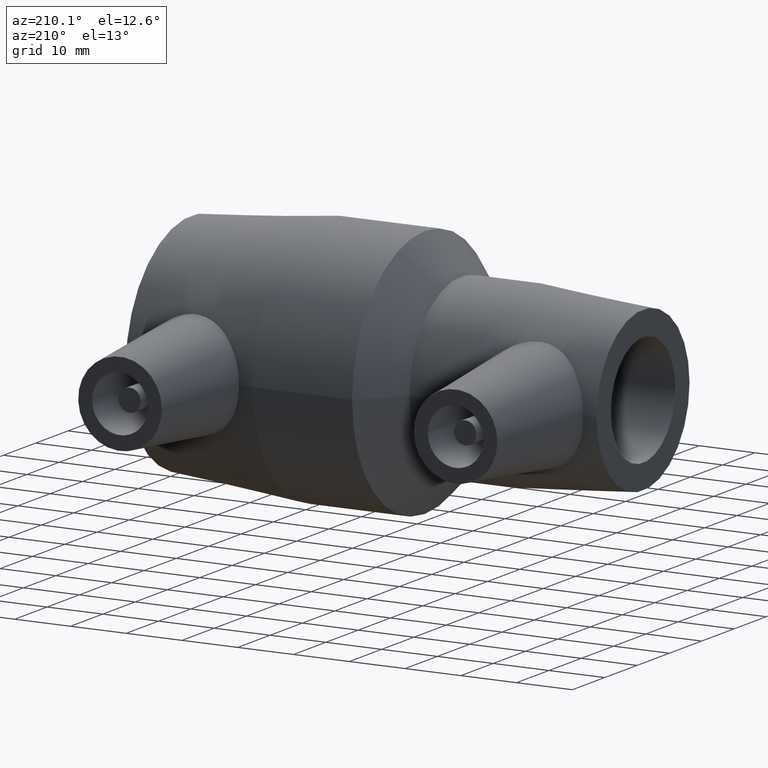
[diagram: clean part render]
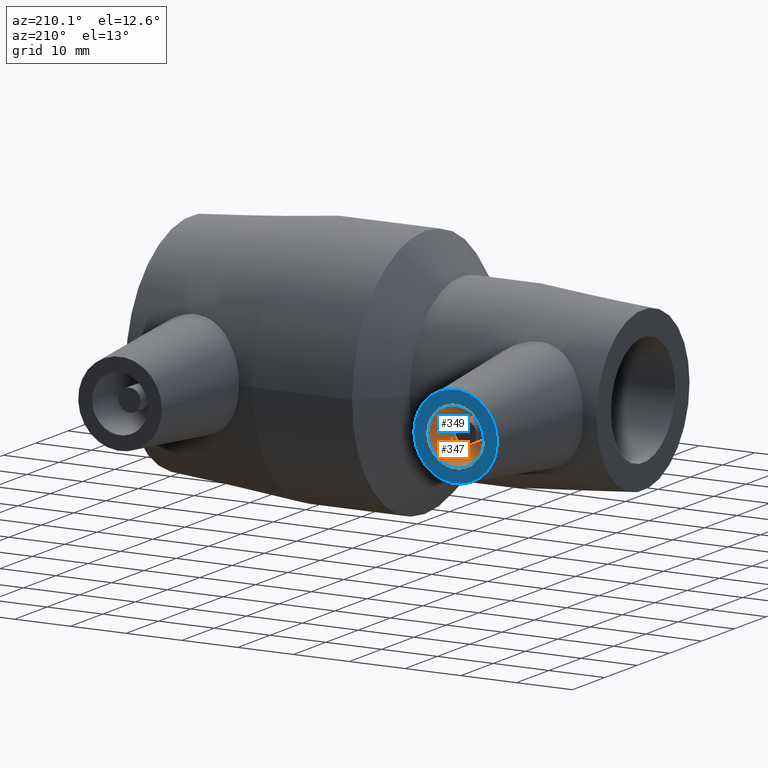
[diagram: same view with the hole feature highlighted: cylindrical wall and planar end face, labeled with their STEP entity ids]
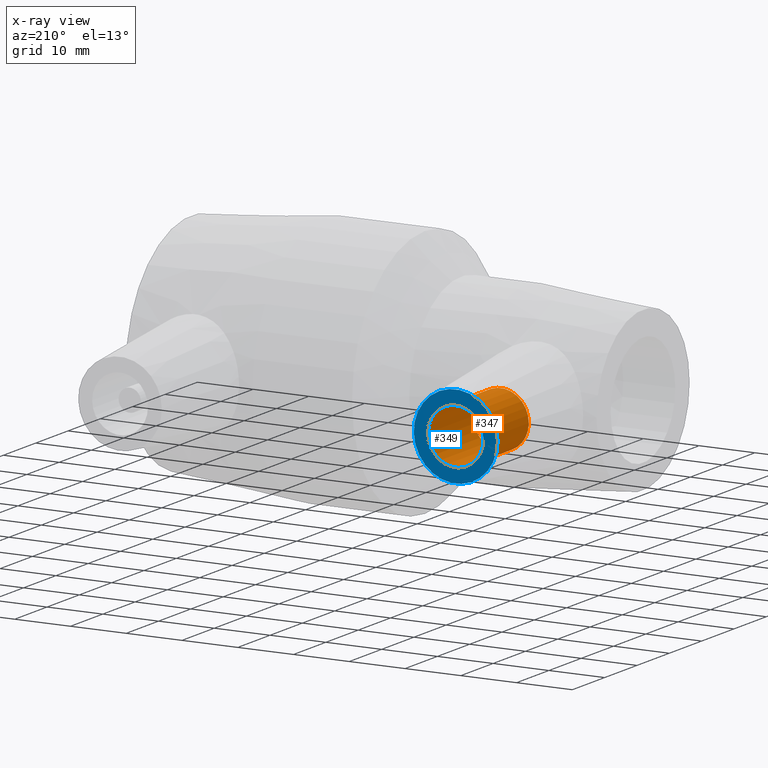
[diagram: x-ray of the same camera — body ghosted, the hole faces saturated]
A machine part, auxiliary view. The highlighted faces form one hole feature of diameter 10 mm: the cylindrical wall (entity #347, orange) and its adjacent planar end face (entity #349, blue) — they share a circular edge in the B-rep.
The next image is the same camera in x-ray (body ghosted, the hole faces saturated) — the bore reads through the body.
Wall:
#34=FACE_BOUND('',#116,.T.);
#61=CYLINDRICAL_SURFACE('',#388,5.);
#77=FACE_OUTER_BOUND('',#115,.T.);
#115=EDGE_LOOP('',(#273));
#116=EDGE_LOOP('',(#274));
#170=CIRCLE('',#389,5.);
#171=CIRCLE('',#390,5.);
#201=VERTEX_POINT('',#620);
#202=VERTEX_POINT('',#622);
#233=EDGE_CURVE('',#201,#201,#170,.T.);
#234=EDGE_CURVE('',#202,#202,#171,.T.);
#273=ORIENTED_EDGE('',*,*,#233,.T.);
#274=ORIENTED_EDGE('',*,*,#234,.F.);
#347=ADVANCED_FACE('',(#77,#34),#61,.F.);
#388=AXIS2_PLACEMENT_3D('',#619,#467,#468);
#389=AXIS2_PLACEMENT_3D('',#621,#469,#470);
#390=AXIS2_PLACEMENT_3D('',#623,#471,#472);
#467=DIRECTION('center_axis',(0.,-1.,0.));
#468=DIRECTION('ref_axis',(-1.,0.,0.));
#469=DIRECTION('center_axis',(0.,-1.,0.));
#470=DIRECTION('ref_axis',(-1.,0.,0.));
#471=DIRECTION('center_axis',(0.,-1.,0.));
#472=DIRECTION('ref_axis',(-1.,0.,0.));
#619=CARTESIAN_POINT('Origin',(-28.35,37.,0.));
#620=CARTESIAN_POINT('',(-23.35,23.,-6.12323399573677E-16));
#621=CARTESIAN_POINT('Origin',(-28.35,23.,0.));
#622=CARTESIAN_POINT('',(-23.35,37.,-6.12323399573677E-16));
#623=CARTESIAN_POINT('Origin',(-28.35,37.,0.));
End face:
#36=FACE_BOUND('',#120,.T.);
#79=FACE_OUTER_BOUND('',#119,.T.);
#119=EDGE_LOOP('',(#277));
#120=EDGE_LOOP('',(#278));
#171=CIRCLE('',#390,5.);
#172=CIRCLE('',#393,7.5);
#202=VERTEX_POINT('',#622);
#203=VERTEX_POINT('',#626);
#234=EDGE_CURVE('',#202,#202,#171,.T.);
#235=EDGE_CURVE('',#203,#203,#172,.T.);
#277=ORIENTED_EDGE('',*,*,#235,.F.);
#278=ORIENTED_EDGE('',*,*,#234,.T.);
#332=PLANE('',#392);
#349=ADVANCED_FACE('',(#79,#36),#332,.T.);
#390=AXIS2_PLACEMENT_3D('',#623,#471,#472);
#392=AXIS2_PLACEMENT_3D('',#625,#475,#476);
#393=AXIS2_PLACEMENT_3D('',#627,#477,#478);
#471=DIRECTION('center_axis',(0.,-1.,0.));
#472=DIRECTION('ref_axis',(-1.,0.,0.));
#475=DIRECTION('center_axis',(0.,1.,0.));
#476=DIRECTION('ref_axis',(0.,0.,1.));
#477=DIRECTION('center_axis',(0.,-1.,0.));
#478=DIRECTION('ref_axis',(1.,0.,0.));
#622=CARTESIAN_POINT('',(-23.35,37.,-6.12323399573677E-16));
#623=CARTESIAN_POINT('Origin',(-28.35,37.,0.));
#625=CARTESIAN_POINT('Origin',(-28.35,37.,1.2335811384724E-16));
#626=CARTESIAN_POINT('',(-35.85,37.,9.18485099360515E-16));
#627=CARTESIAN_POINT('Origin',(-28.35,37.,0.));